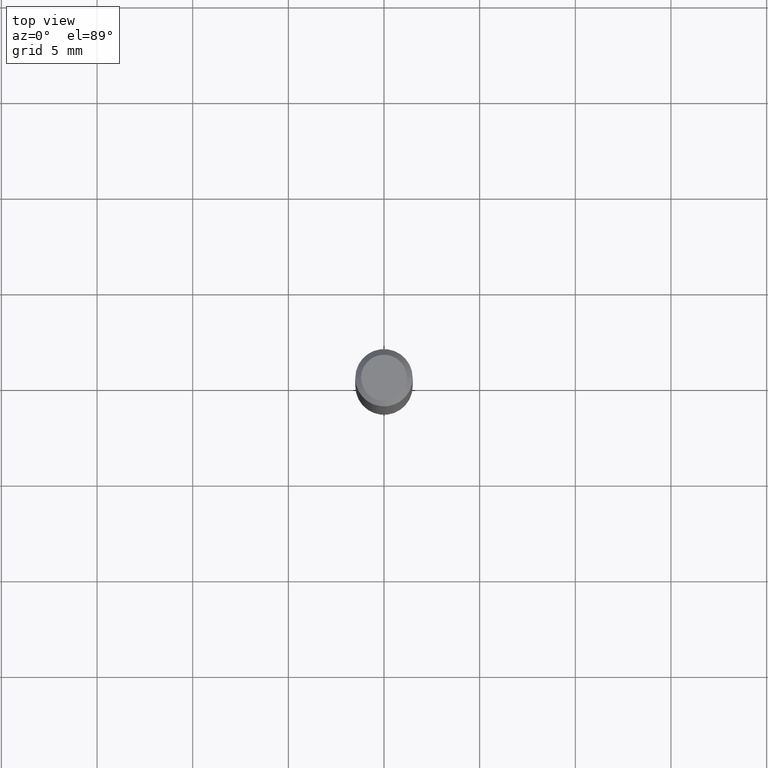
[diagram: clean part render]
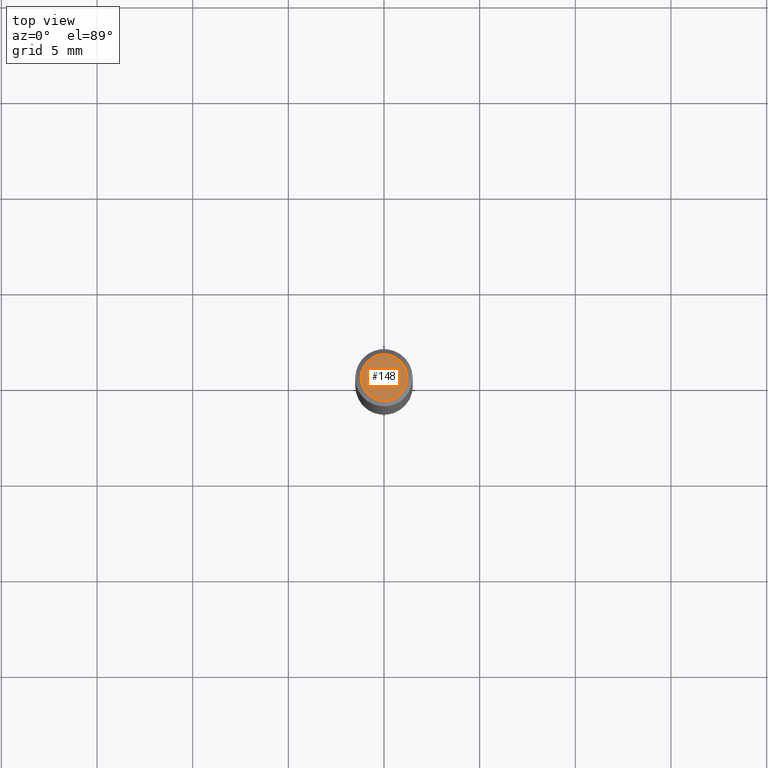
[diagram: same view with one face highlighted and labeled with its STEP entity id]
A machine part, top view. The second image highlights one B-rep face of the part: STEP entity #148.
In plain terms, the highlighted planar face has unit normal (0, -0, -1).
Its self-contained STEP definition (entity closure, byte-faithful):
#31 = DIRECTION ( 'NONE',  ( -2.445468806185136597E-29, 3.491481338843145583E-15, 1.000000000000000000 ) ) ;
#34 = DIRECTION ( 'NONE',  ( -1.000000000000000000, 6.982962677686265922E-15, -4.876176775795935793E-29 ) ) ;
#64 = CARTESIAN_POINT ( 'NONE',  ( 4.132873053354867254E-48, -5.900647395337818946E-34, -1.690012582823346072E-19 ) ) ;
#73 = PLANE ( 'NONE',  #272 ) ;
#84 = ORIENTED_EDGE ( 'NONE', *, *, #287, .T. ) ;
#103 = CARTESIAN_POINT ( 'NONE',  ( 0.04724000000000000421, -3.852183633974369345E-16, -3.380025165621689721E-19 ) ) ;
#148 = ADVANCED_FACE ( 'NONE', ( #294 ), #73, .F. ) ;
#193 = EDGE_LOOP ( 'NONE', ( #347, #84 ) ) ;
#201 = CIRCLE ( 'NONE', #441, 0.04724000000000000421 ) ;
#230 = EDGE_CURVE ( 'NONE', #235, #370, #201, .T. ) ;
#235 = VERTEX_POINT ( 'NONE', #291 ) ;
#239 = CIRCLE ( 'NONE', #296, 0.04724000000000000421 ) ;
#243 = CARTESIAN_POINT ( 'NONE',  ( 8.265746106709734507E-48, -1.180129479067563789E-33, -3.380025165646692144E-19 ) ) ;
#262 = CARTESIAN_POINT ( 'NONE',  ( 8.265746106709734507E-48, -1.180129479067563789E-33, -3.380025165646692144E-19 ) ) ;
#272 = AXIS2_PLACEMENT_3D ( 'NONE', #64, #408, #34 ) ;
#287 = EDGE_CURVE ( 'NONE', #370, #235, #239, .T. ) ;
#291 = CARTESIAN_POINT ( 'NONE',  ( -0.04724000000000000421, 3.504923541997677355E-16, -3.380025165670481712E-19 ) ) ;
#294 = FACE_OUTER_BOUND ( 'NONE', #193, .T. ) ;
#296 = AXIS2_PLACEMENT_3D ( 'NONE', #262, #417, #305 ) ;
#305 = DIRECTION ( 'NONE',  ( 1.000000000000000000, -6.982962677686266711E-15, 4.876185090822587894E-29 ) ) ;
#347 = ORIENTED_EDGE ( 'NONE', *, *, #230, .T. ) ;
#365 = DIRECTION ( 'NONE',  ( 1.000000000000000000, -6.982962677686266711E-15, 4.876185090822587894E-29 ) ) ;
#370 = VERTEX_POINT ( 'NONE', #103 ) ;
#408 = DIRECTION ( 'NONE',  ( 2.438088387897960049E-29, -3.491481338843145188E-15, -1.000000000000000000 ) ) ;
#417 = DIRECTION ( 'NONE',  ( -2.445468806185136597E-29, 3.491481338843145583E-15, 1.000000000000000000 ) ) ;
#441 = AXIS2_PLACEMENT_3D ( 'NONE', #243, #31, #365 ) ;